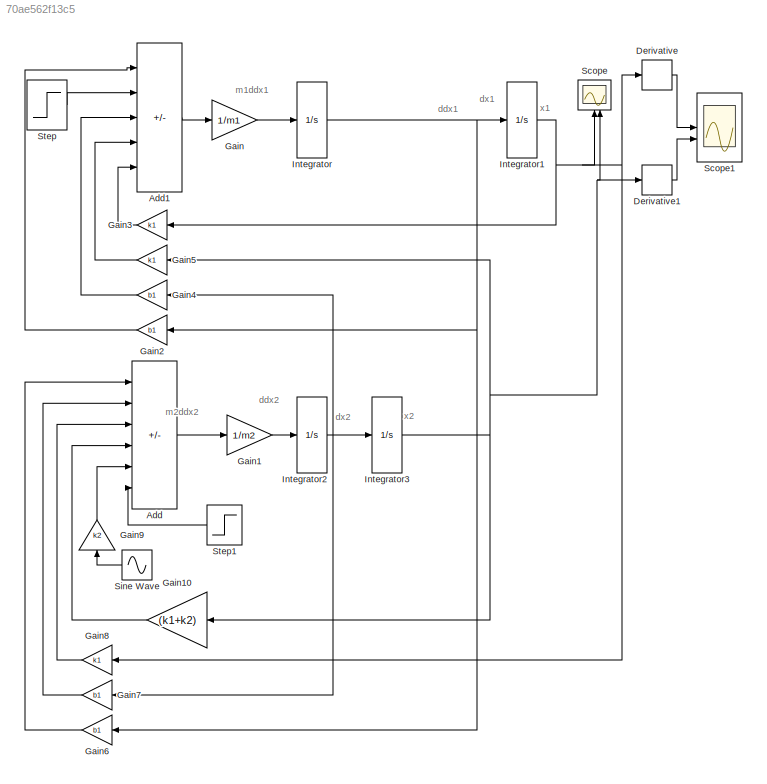
MODEL slx_70ae562f13c5
KIND model
CONFIG AbsTol = auto
CONFIG EnableMultiTasking = off
CONFIG FixedStep = auto
CONFIG MaxStep = auto
CONFIG MinStep = auto
CONFIG RelTol = 1e-3
CONFIG SampleTimeConstraint = Unconstrained
CONFIG SolverName = VariableStepAuto
CONFIG StartTime = 0.0
CONFIG StopTime = 10.0
BLOCK [Sum] Add
  IconShape = rectangular
  Inputs = |+-+-+-
BLOCK [Sum] Add1
  IconShape = rectangular
  Inputs = |-+++-
BLOCK [Derivative] Derivative
BLOCK [Derivative] Derivative1
BLOCK [Gain] Gain
  Gain = 1/m1
BLOCK [Gain] Gain1
  Gain = 1/m2
BLOCK [Gain] Gain10
  Gain = (k1+k2)
  NameLocation = top
BLOCK [Gain] Gain2
  Gain = b1
  NameLocation = top
BLOCK [Gain] Gain3
  Gain = k1
  NameLocation = top
BLOCK [Gain] Gain4
  Gain = b1
  NameLocation = top
BLOCK [Gain] Gain5
  Gain = k1
  NameLocation = top
BLOCK [Gain] Gain6
  Gain = b1
  NameLocation = top
BLOCK [Gain] Gain7
  Gain = b1
  NameLocation = top
BLOCK [Gain] Gain8
  Gain = k1
  NameLocation = top
BLOCK [Gain] Gain9
  Gain = k2
  NameLocation = right
BLOCK [Integrator] Integrator
BLOCK [Integrator] Integrator1
BLOCK [Integrator] Integrator2
BLOCK [Integrator] Integrator3
BLOCK [Scope] Scope
  Floating = off
  NameLocation = right
  NumInputPorts = 2
  ScopeSpecificationString = Simulink.scopes.TimeScopeBlockCfg('CurrentConfiguration', extmgr.ConfigurationSet(extmgr.Configuration('Core','General UI',true),extmgr.Configuration('Core','Source UI',true),extmgr.Configuration('Sources','WiredSimulink',true),extmgr.Configuration('Visuals','Time Domain',true,'SerializedDisplays',{struct('MinYLimReal','-0.00447','MaxYLimReal','0.00553','YLabelReal','','MinYLimMag','0.00000','MaxY...<+2186ch>
BLOCK [Scope] Scope1
  Floating = off
  NumInputPorts = 2
  ScopeSpecificationString = Simulink.scopes.TimeScopeBlockCfg('CurrentConfiguration', extmgr.ConfigurationSet(extmgr.Configuration('Core','General UI',true),extmgr.Configuration('Core','Source UI',true),extmgr.Configuration('Sources','WiredSimulink',true,'DataLoggingVariableName','ScopeData1'),extmgr.Configuration('Visuals','Time Domain',true,'SerializedDisplays',{struct('MinYLimReal','-0.14322','MaxYLimReal','0.16097','YLab...<+1547ch>
BLOCK [Sin] Sine Wave
  Amplitude = 0.05
  Frequency = 20*pi
  NameLocation = top
  SampleTime = 0
BLOCK [Step] Step
  After = 0
  SampleTime = 0
  Time = 0
BLOCK [Step] Step1
  After = 0
  NameLocation = top
  SampleTime = 0
  Time = 0
ANNOTATION (root): ddx1
ANNOTATION (root): ddx2
ANNOTATION (root): dx1
ANNOTATION (root): dx2
ANNOTATION (root): m1ddx1
ANNOTATION (root): m2ddx2
ANNOTATION (root): x1
ANNOTATION (root): x2
LINE Add1:1 -> Gain:1
LINE Add:1 -> Gain1:1
LINE Derivative1:1 -> Scope1:2
LINE Derivative:1 -> Scope1:1
LINE Gain10:1 -> Add:4
LINE Gain1:1 -> Integrator2:1
LINE Gain2:1 -> Add1:1
LINE Gain3:1 -> Add1:5
LINE Gain4:1 -> Add1:3
LINE Gain5:1 -> Add1:4
LINE Gain6:1 -> Add:1
LINE Gain7:1 -> Add:2
LINE Gain8:1 -> Add:3
LINE Gain9:1 -> Add:5
LINE Gain:1 -> Integrator:1
NET Integrator1:1 -> Derivative:1, Gain3:1, Gain8:1, Scope:1
NET Integrator2:1 -> Gain4:1, Gain7:1, Integrator3:1
NET Integrator3:1 -> Derivative1:1, Gain10:1, Gain5:1, Scope:2
NET Integrator:1 -> Gain2:1, Gain6:1, Integrator1:1
LINE Sine Wave:1 -> Gain9:1
LINE Step1:1 -> Add:6
LINE Step:1 -> Add1:2
note: NET lines group one-source signal fan-out (src -> all destinations, sorted); 1:1 wires keep LINE
